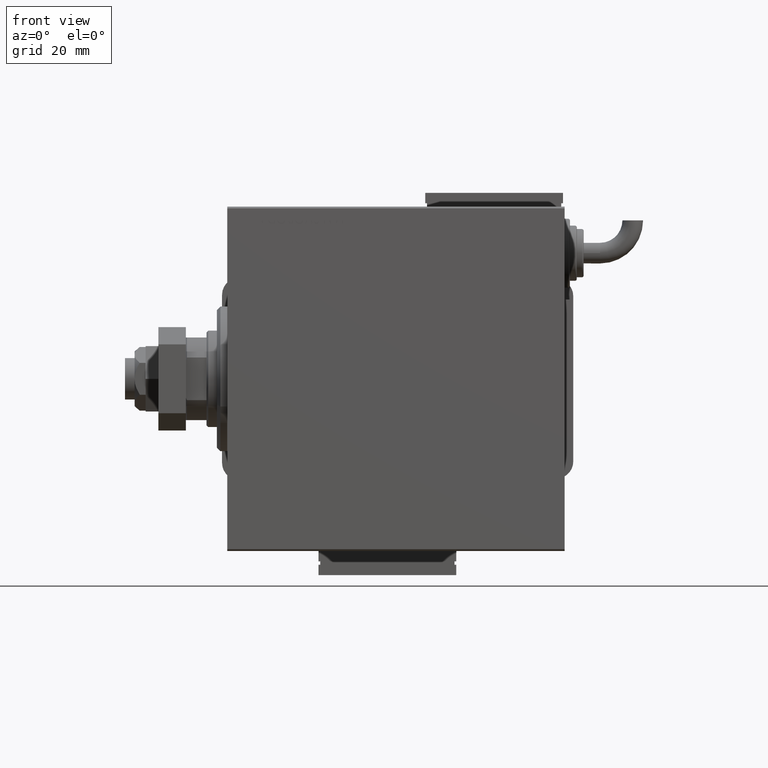
[diagram: clean part render]
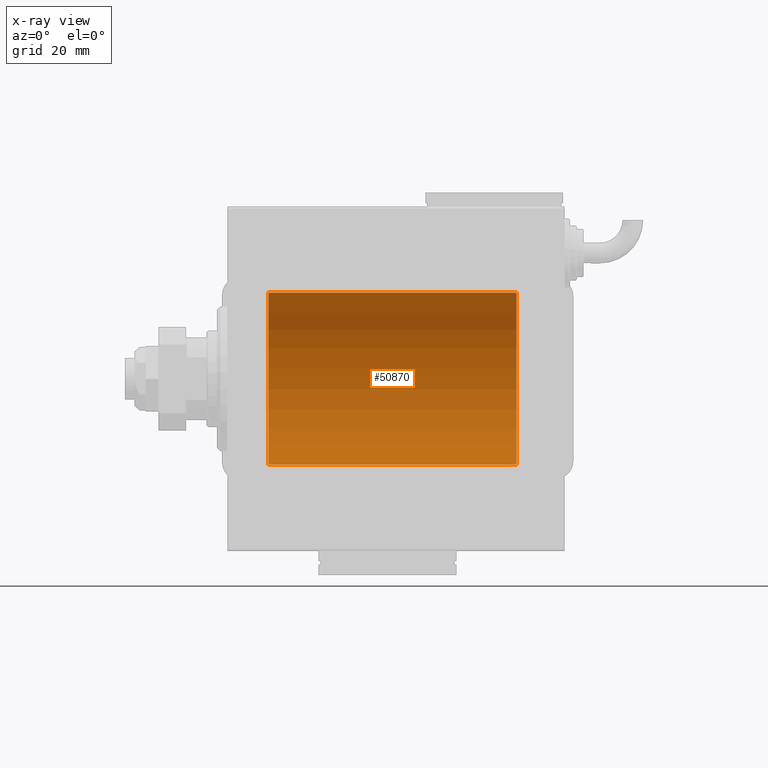
[diagram: x-ray — body ghosted, one internal face saturated and labeled with its STEP entity id]
A machine part, front view, then the same camera in x-ray: the body is ghosted and one INTERNAL B-rep face — a face not visible from any outside direction — is saturated and labeled: STEP entity #50870.
In plain terms, the highlighted cylindrical surface (partial cylindrical patch) has radius 25 mm, axis along (-1, -0, -0).
Its self-contained STEP definition (entity closure, byte-faithful):
#894 = DIRECTION ( 'NONE',  ( 0.000000000000000000, 0.000000000000000000, 1.000000000000000000 ) ) ;
#1196 = FACE_OUTER_BOUND ( 'NONE', #23899, .T. ) ;
#1477 = CARTESIAN_POINT ( 'NONE',  ( 30.65075206354793380, 1.884745564839657828, -24.92912799315484662 ) ) ;
#2070 = CARTESIAN_POINT ( 'NONE',  ( 30.25371533481192543, 2.169035936979791135, -24.90589343070811168 ) ) ;
#3116 = CARTESIAN_POINT ( 'NONE',  ( 80.64874342732643697, 2.419890192637117021, -24.88262770889312847 ) ) ;
#4269 = EDGE_CURVE ( 'NONE', #17326, #27278, #9308, .T. ) ;
#4534 = CARTESIAN_POINT ( 'NONE',  ( 81.25371533481192898, 2.169035936979788470, -24.90589343070811168 ) ) ;
#4670 = EDGE_CURVE ( 'NONE', #57614, #27278, #55318, .T. ) ;
#5125 = CARTESIAN_POINT ( 'NONE',  ( 82.50000000000001421, 0.1632133729155562929, -25.00000000000000355 ) ) ;
#5343 = VECTOR ( 'NONE', #48712, 1000.000000000000000 ) ;
#5732 = DIRECTION ( 'NONE',  ( -1.000000000000000000, -0.000000000000000000, -0.000000000000000000 ) ) ;
#6012 = CARTESIAN_POINT ( 'NONE',  ( 30.88423301929986664, 1.651337078997084484, -24.94567646296264485 ) ) ;
#6613 = CARTESIAN_POINT ( 'NONE',  ( 30.98758834612092983, 1.525124164792372561, -24.95380474534676907 ) ) ;
#7200 = CARTESIAN_POINT ( 'NONE',  ( 31.24692376408954075, 1.108237982093038587, -24.97588368351298627 ) ) ;
#7791 = CARTESIAN_POINT ( 'NONE',  ( 11.99999999999999645, 0.000000000000000000, 25.00000000000000000 ) ) ;
#8171 = LINE ( 'NONE', #31166, #53000 ) ;
#8988 = DIRECTION ( 'NONE',  ( -1.000000000000000000, 0.000000000000000000, 0.000000000000000000 ) ) ;
#9308 = B_SPLINE_CURVE_WITH_KNOTS ( 'NONE', 3,
 ( #24948, #11318, #34603, #29486, #43116, #20109, #38554, #34006, #15563, #52490, #39150, #11034, #48245, #47953, #43419, #57629, #16152, #38859, #12509, #3116, #18463, #26430, #4534, #9381, #26129, #37213, #49736, #53971, #17039, #46305, #51153, #27547, #5125, #18761 ),
 .UNSPECIFIED., .F., .F.,
 ( 4, 2, 2, 2, 2, 2, 2, 2, 2, 2, 2, 2, 2, 2, 2, 2, 4 ),
 ( 2.479143365900102323E-19, 0.0004888140276038942808, 0.0009776280552077883448, 0.001466442082811682300, 0.001955256110415576690, 0.002444070138019470862, 0.002932884165623364601, 0.003421698193227258773, 0.003910512220831152512, 0.004399326248435046251, 0.004888140276038940857, 0.005376954303642834596, 0.005865768331246728334, 0.006354582358850622940, 0.006843396386454516679, 0.007332210414058411285, 0.007821024441662305024 ),
 .UNSPECIFIED. ) ;
#9381 = CARTESIAN_POINT ( 'NONE',  ( 81.52450344187180065, 1.988066470813644182, -24.92099187803979987 ) ) ;
#9960 = CARTESIAN_POINT ( 'NONE',  ( 82.50000000000001421, 3.061616978466502512E-15, -25.00000000000000000 ) ) ;
#10661 = ORIENTED_EDGE ( 'NONE', *, *, #4269, .T. ) ;
#10867 = CARTESIAN_POINT ( 'NONE',  ( 31.48364115014310727, 0.3289998300458058522, -24.99834914448732448 ) ) ;
#11034 = CARTESIAN_POINT ( 'NONE',  ( 78.74695886470065886, 2.169541443998010966, -24.90585268157804677 ) ) ;
#11318 = CARTESIAN_POINT ( 'NONE',  ( 77.50000000000000000, 0.1652919547268409395, -25.00000000000000711 ) ) ;
#12279 = ORIENTED_EDGE ( 'NONE', *, *, #38560, .T. ) ;
#12509 = CARTESIAN_POINT ( 'NONE',  ( 80.32801772275007579, 2.483775543901338700, -24.87633190989611265 ) ) ;
#12847 = AXIS2_PLACEMENT_3D ( 'NONE', #33761, #28627, #38613 ) ;
#14117 = CARTESIAN_POINT ( 'NONE',  ( 11.99999999999999645, 0.000000000000000000, 0.000000000000000000 ) ) ;
#14520 = CYLINDRICAL_SURFACE ( 'NONE', #28717, 25.00000000000000000 ) ;
#14781 = AXIS2_PLACEMENT_3D ( 'NONE', #14117, #8988, #37112 ) ;
#15563 = CARTESIAN_POINT ( 'NONE',  ( 78.11730287024110453, 1.652881481536629948, -24.94556728625771669 ) ) ;
#15993 = CARTESIAN_POINT ( 'NONE',  ( 31.37237109198581209, 0.8054273576766391995, -24.98748174524255461 ) ) ;
#16152 = CARTESIAN_POINT ( 'NONE',  ( 79.83592030623263724, 2.499940606140138133, -24.87469189697262095 ) ) ;
#16275 = CARTESIAN_POINT ( 'NONE',  ( 84.00000000000000000, 0.000000000000000000, 25.00000000000000000 ) ) ;
#16283 = CARTESIAN_POINT ( 'NONE',  ( 29.80463913299814749, 2.372637051600631874, -24.88723676875459034 ) ) ;
#16789 = ORIENTED_EDGE ( 'NONE', *, *, #55238, .T. ) ;
#17039 = CARTESIAN_POINT ( 'NONE',  ( 82.24692376408954431, 1.108237982093040142, -24.97588368351298627 ) ) ;
#17059 = VERTEX_POINT ( 'NONE', #44317 ) ;
#17326 = VERTEX_POINT ( 'NONE', #22576 ) ;
#18463 = CARTESIAN_POINT ( 'NONE',  ( 80.80463913299813328, 2.372637051600627878, -24.88723676875458679 ) ) ;
#18761 = CARTESIAN_POINT ( 'NONE',  ( 82.50000000000001421, 3.061616978466502512E-15, -25.00000000000000000 ) ) ;
#19120 = CARTESIAN_POINT ( 'NONE',  ( 84.00000000000000000, 3.061616997868382254E-15, -25.00000000000000000 ) ) ;
#19639 = CARTESIAN_POINT ( 'NONE',  ( 26.57980964520840672, 0.6474866336855760185, -24.99212517028518121 ) ) ;
#19925 = ORIENTED_EDGE ( 'NONE', *, *, #54211, .F. ) ;
#19947 = CARTESIAN_POINT ( 'NONE',  ( 28.19316411112866660, 2.371819214216752680, -24.88731391344728294 ) ) ;
#20109 = CARTESIAN_POINT ( 'NONE',  ( 77.75348321179131972, 1.109060198064595548, -24.97584694923137505 ) ) ;
#20250 = CARTESIAN_POINT ( 'NONE',  ( 26.83029543590130928, 1.252624798282894192, -24.96896960740658500 ) ) ;
#20545 = CARTESIAN_POINT ( 'NONE',  ( 26.62793608542407853, 0.8063280894284498013, -24.98745245851526064 ) ) ;
#20833 = CARTESIAN_POINT ( 'NONE',  ( 29.64874342732638368, 2.419890192637123683, -24.88262770889313913 ) ) ;
#21776 = LINE ( 'NONE', #40230, #5343 ) ;
#22576 = CARTESIAN_POINT ( 'NONE',  ( 77.50000000000001421, -1.022092533403706378E-15, -25.00000000000000000 ) ) ;
#23585 = CARTESIAN_POINT ( 'NONE',  ( 26.50000000000000355, -1.030486103406027476E-15, -25.00000000000000000 ) ) ;
#23899 = EDGE_LOOP ( 'NONE', ( #54288, #25237, #58855, #12279, #19925, #16789, #25414, #10661 ) ) ;
#24948 = CARTESIAN_POINT ( 'NONE',  ( 77.50000000000001421, -1.022092533403706378E-15, -25.00000000000000000 ) ) ;
#25237 = ORIENTED_EDGE ( 'NONE', *, *, #38649, .F. ) ;
#25375 = CARTESIAN_POINT ( 'NONE',  ( 27.01175333178059290, 1.524323445682838285, -24.95385641887458661 ) ) ;
#25414 = ORIENTED_EDGE ( 'NONE', *, *, #58344, .F. ) ;
#25992 = VECTOR ( 'NONE', #28495, 1000.000000000000000 ) ;
#26129 = CARTESIAN_POINT ( 'NONE',  ( 81.65075206354792670, 1.884745564839660492, -24.92912799315484662 ) ) ;
#26430 = CARTESIAN_POINT ( 'NONE',  ( 81.10745236819801107, 2.247309494740953095, -24.89886665287248135 ) ) ;
#27278 = VERTEX_POINT ( 'NONE', #9960 ) ;
#27547 = CARTESIAN_POINT ( 'NONE',  ( 82.48364115014311437, 0.3289998300458050196, -24.99834914448732448 ) ) ;
#27818 = CARTESIAN_POINT ( 'NONE',  ( 26.50000000000000355, 0.1652919547268403011, -25.00000000000000711 ) ) ;
#28292 = CIRCLE ( 'NONE', #14781, 25.00000000000000000 ) ;
#28495 = DIRECTION ( 'NONE',  ( -1.000000000000000000, -0.000000000000000000, -0.000000000000000000 ) ) ;
#28627 = DIRECTION ( 'NONE',  ( -1.000000000000000000, 0.000000000000000000, 0.000000000000000000 ) ) ;
#28717 = AXIS2_PLACEMENT_3D ( 'NONE', #51447, #5732, #894 ) ;
#29016 = CARTESIAN_POINT ( 'NONE',  ( 27.74695886470063400, 2.169541443998013630, -24.90585268157804677 ) ) ;
#29486 = CARTESIAN_POINT ( 'NONE',  ( 77.57980964520839962, 0.6474866336855770177, -24.99212517028518121 ) ) ;
#29765 = VERTEX_POINT ( 'NONE', #44238 ) ;
#29915 = CARTESIAN_POINT ( 'NONE',  ( 27.89234004476097439, 2.247131495942869872, -24.89888190765473297 ) ) ;
#30209 = CARTESIAN_POINT ( 'NONE',  ( 30.52450344187178644, 1.988066470813645514, -24.92099187803979987 ) ) ;
#31166 = CARTESIAN_POINT ( 'NONE',  ( 84.00000000000000000, 3.061616997868382254E-15, -25.00000000000000000 ) ) ;
#32390 = VERTEX_POINT ( 'NONE', #7791 ) ;
#33761 = CARTESIAN_POINT ( 'NONE',  ( 84.00000000000000000, 0.000000000000000000, 0.000000000000000000 ) ) ;
#34006 = CARTESIAN_POINT ( 'NONE',  ( 78.01175333178062488, 1.524323445682830958, -24.95385641887458661 ) ) ;
#34437 = CARTESIAN_POINT ( 'NONE',  ( 31.50000000000000711, 0.1632133729155560153, -25.00000000000000355 ) ) ;
#34603 = CARTESIAN_POINT ( 'NONE',  ( 77.51623131730845273, 0.3278008924763873844, -24.99836206720143750 ) ) ;
#34737 = CARTESIAN_POINT ( 'NONE',  ( 28.35083484000673693, 2.419847904056438459, -24.88263203448060423 ) ) ;
#37112 = DIRECTION ( 'NONE',  ( 0.000000000000000000, 0.000000000000000000, 1.000000000000000000 ) ) ;
#37140 = CARTESIAN_POINT ( 'NONE',  ( 84.00000000000000000, 3.061616997868382254E-15, -25.00000000000000000 ) ) ;
#37213 = CARTESIAN_POINT ( 'NONE',  ( 81.88423301929988440, 1.651337078997087593, -24.94567646296264485 ) ) ;
#37568 = LINE ( 'NONE', #19120, #25992 ) ;
#37809 = CARTESIAN_POINT ( 'NONE',  ( 84.00000000000000000, 3.061616997868382254E-15, -25.00000000000000000 ) ) ;
#38086 = CARTESIAN_POINT ( 'NONE',  ( 29.16226476613383056, 2.500059064463610703, -24.87467999146394959 ) ) ;
#38554 = CARTESIAN_POINT ( 'NONE',  ( 77.83029543590133414, 1.252624798282886198, -24.96896960740658500 ) ) ;
#38560 = EDGE_CURVE ( 'NONE', #32390, #17059, #28292, .T. ) ;
#38613 = DIRECTION ( 'NONE',  ( 0.000000000000000000, 0.000000000000000000, 1.000000000000000000 ) ) ;
#38649 = EDGE_CURVE ( 'NONE', #40839, #57614, #40846, .T. ) ;
#38691 = CARTESIAN_POINT ( 'NONE',  ( 30.10745236819796844, 2.247309494740955316, -24.89886665287248135 ) ) ;
#38859 = CARTESIAN_POINT ( 'NONE',  ( 80.16226476613384477, 2.500059064463608038, -24.87467999146395314 ) ) ;
#38871 = VECTOR ( 'NONE', #40511, 1000.000000000000000 ) ;
#38993 = CARTESIAN_POINT ( 'NONE',  ( 29.32801772275002605, 2.483775543901343585, -24.87633190989611265 ) ) ;
#39150 = CARTESIAN_POINT ( 'NONE',  ( 78.47366496487659049, 1.986787236855545036, -24.92109717386378165 ) ) ;
#40230 = CARTESIAN_POINT ( 'NONE',  ( 84.00000000000000000, 0.000000000000000000, 25.00000000000000000 ) ) ;
#40247 = DIRECTION ( 'NONE',  ( -1.000000000000000000, -0.000000000000000000, -0.000000000000000000 ) ) ;
#40511 = DIRECTION ( 'NONE',  ( -1.000000000000000000, -0.000000000000000000, -0.000000000000000000 ) ) ;
#40839 = VERTEX_POINT ( 'NONE', #16275 ) ;
#40846 = CIRCLE ( 'NONE', #12847, 25.00000000000000000 ) ;
#42641 = CARTESIAN_POINT ( 'NONE',  ( 26.75348321179130195, 1.109060198064592440, -24.97584694923138215 ) ) ;
#43116 = CARTESIAN_POINT ( 'NONE',  ( 77.62793608542409629, 0.8063280894284527989, -24.98745245851526064 ) ) ;
#43419 = CARTESIAN_POINT ( 'NONE',  ( 79.35083484000675469, 2.419847904056434462, -24.88263203448060423 ) ) ;
#43549 = CARTESIAN_POINT ( 'NONE',  ( 31.16861818252479921, 1.254434665533507687, -24.96887599906795785 ) ) ;
#43844 = CARTESIAN_POINT ( 'NONE',  ( 31.41966436084114989, 0.6495680347195871285, -24.99207398768918864 ) ) ;
#44238 = CARTESIAN_POINT ( 'NONE',  ( 31.50000000000000000, 3.061616978460191625E-15, -25.00000000000000000 ) ) ;
#44317 = CARTESIAN_POINT ( 'NONE',  ( 11.99999999999999645, 3.061616997868382254E-15, -25.00000000000000000 ) ) ;
#45172 = B_SPLINE_CURVE_WITH_KNOTS ( 'NONE', 3,
 ( #23585, #27818, #46284, #19639, #20545, #42641, #20250, #25375, #56877, #57472, #52911, #29016, #29915, #19947, #34737, #52327, #47787, #38086, #38993, #20833, #16283, #38691, #2070, #30209, #1477, #6012, #6613, #43549, #7200, #15993, #43844, #10867, #34437, #48672 ),
 .UNSPECIFIED., .F., .F.,
 ( 4, 2, 2, 2, 2, 2, 2, 2, 2, 2, 2, 2, 2, 2, 2, 2, 4 ),
 ( 6.360548730919160171E-19, 0.0004888140276038948229, 0.0009776280552077889954, 0.001466442082811683168, 0.001955256110415577123, 0.002444070138019471296, 0.002932884165623365468, 0.003421698193227259641, 0.003910512220831154247, 0.004399326248435047985, 0.004888140276038942592, 0.005376954303642837198, 0.005865768331246730936, 0.006354582358850624675, 0.006843396386454519281, 0.007332210414058413887, 0.007821024441662306759 ),
 .UNSPECIFIED. ) ;
#45418 = EDGE_CURVE ( 'NONE', #40839, #32390, #21776, .T. ) ;
#46284 = CARTESIAN_POINT ( 'NONE',  ( 26.51623131730843141, 0.3278008924763859966, -24.99836206720143750 ) ) ;
#46305 = CARTESIAN_POINT ( 'NONE',  ( 82.37237109198585472, 0.8054273576766400877, -24.98748174524255461 ) ) ;
#46759 = VERTEX_POINT ( 'NONE', #48591 ) ;
#47787 = CARTESIAN_POINT ( 'NONE',  ( 28.83592030623262659, 2.499940606140140797, -24.87469189697262095 ) ) ;
#47953 = CARTESIAN_POINT ( 'NONE',  ( 79.19316411112868082, 2.371819214216751792, -24.88731391344728294 ) ) ;
#48245 = CARTESIAN_POINT ( 'NONE',  ( 78.89234004476098505, 2.247131495942870316, -24.89888190765473297 ) ) ;
#48591 = CARTESIAN_POINT ( 'NONE',  ( 26.50000000000000355, -1.030486103406027476E-15, -25.00000000000000000 ) ) ;
#48672 = CARTESIAN_POINT ( 'NONE',  ( 31.50000000000000000, 3.061616978460191625E-15, -25.00000000000000000 ) ) ;
#48712 = DIRECTION ( 'NONE',  ( -1.000000000000000000, -0.000000000000000000, -0.000000000000000000 ) ) ;
#49736 = CARTESIAN_POINT ( 'NONE',  ( 81.98758834612091562, 1.525124164792374115, -24.95380474534676907 ) ) ;
#50870 = ADVANCED_FACE ( 'NONE', ( #1196 ), #14520, .F. ) ;
#51153 = CARTESIAN_POINT ( 'NONE',  ( 82.41966436084116765, 0.6495680347195872395, -24.99207398768918864 ) ) ;
#51447 = CARTESIAN_POINT ( 'NONE',  ( 84.00000000000000000, 0.000000000000000000, 0.000000000000000000 ) ) ;
#52327 = CARTESIAN_POINT ( 'NONE',  ( 28.67362550772655894, 2.484060984458447141, -24.87630362147113772 ) ) ;
#52490 = CARTESIAN_POINT ( 'NONE',  ( 78.34785002149173749, 1.883339088673193329, -24.92922739080161065 ) ) ;
#52911 = CARTESIAN_POINT ( 'NONE',  ( 27.47366496487658338, 1.986787236855548144, -24.92109717386378165 ) ) ;
#53000 = VECTOR ( 'NONE', #40247, 1000.000000000000000 ) ;
#53971 = CARTESIAN_POINT ( 'NONE',  ( 82.16861818252479566, 1.254434665533510129, -24.96887599906795785 ) ) ;
#54211 = EDGE_CURVE ( 'NONE', #46759, #17059, #8171, .T. ) ;
#54288 = ORIENTED_EDGE ( 'NONE', *, *, #4670, .F. ) ;
#55238 = EDGE_CURVE ( 'NONE', #46759, #29765, #45172, .T. ) ;
#55318 = LINE ( 'NONE', #37140, #38871 ) ;
#56877 = CARTESIAN_POINT ( 'NONE',  ( 27.11730287024108677, 1.652881481536635055, -24.94556728625771669 ) ) ;
#57472 = CARTESIAN_POINT ( 'NONE',  ( 27.34785002149174815, 1.883339088673198214, -24.92922739080161065 ) ) ;
#57614 = VERTEX_POINT ( 'NONE', #37809 ) ;
#57629 = CARTESIAN_POINT ( 'NONE',  ( 79.67362550772655538, 2.484060984458443588, -24.87630362147113772 ) ) ;
#58344 = EDGE_CURVE ( 'NONE', #17326, #29765, #37568, .T. ) ;
#58855 = ORIENTED_EDGE ( 'NONE', *, *, #45418, .T. ) ;